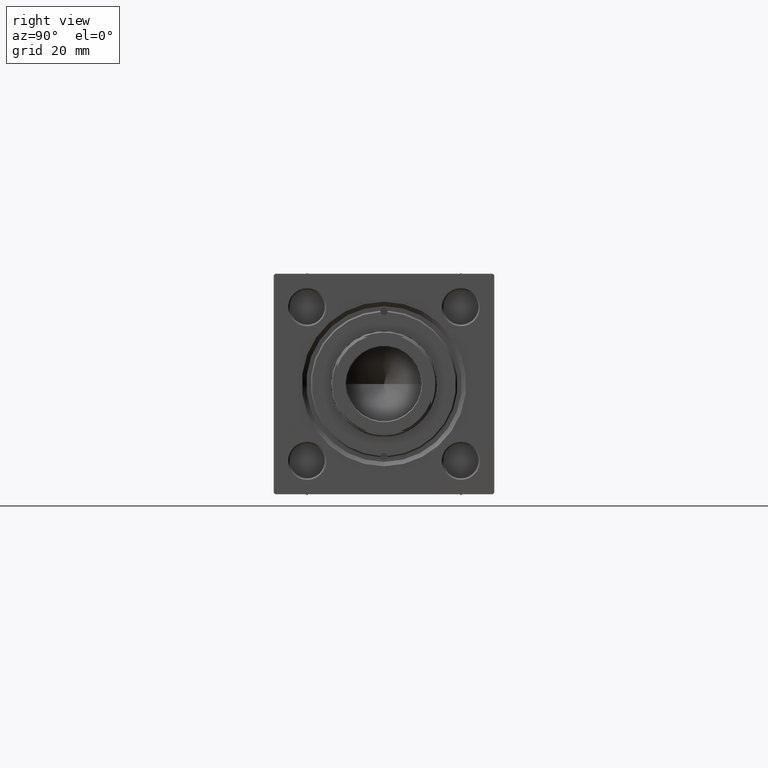
[diagram: clean part render]
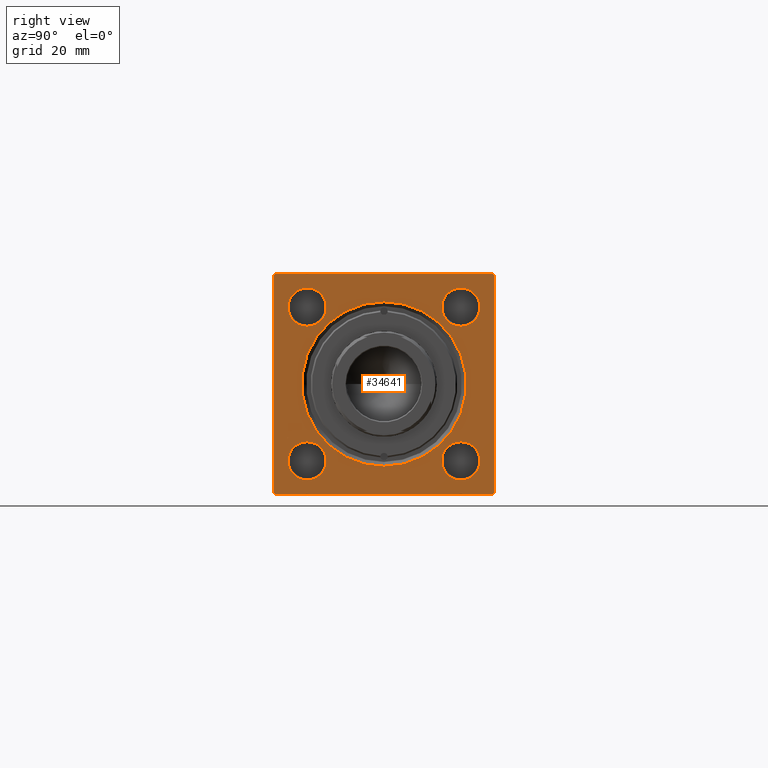
[diagram: same view with one face highlighted and labeled with its STEP entity id]
A machine part, right view. The second image highlights one B-rep face of the part: STEP entity #34641.
In plain terms, the highlighted planar face has unit normal (-1, 0, 0).
Its self-contained STEP definition (entity closure, byte-faithful):
#205 = CARTESIAN_POINT ( 'NONE',  ( 184.0000000000000000, 37.50000000000000000, 37.49999999999999289 ) ) ;
#549 = ORIENTED_EDGE ( 'NONE', *, *, #22399, .T. ) ;
#653 = LINE ( 'NONE', #27917, #35247 ) ;
#822 = CARTESIAN_POINT ( 'NONE',  ( 184.0000000000000000, -26.14999999999999147, 19.64999999999999503 ) ) ;
#872 = EDGE_LOOP ( 'NONE', ( #46929, #549 ) ) ;
#898 = CARTESIAN_POINT ( 'NONE',  ( 184.0000000000000000, 26.14999999999999858, 26.15000000000000213 ) ) ;
#1072 = AXIS2_PLACEMENT_3D ( 'NONE', #898, #16448, #31977 ) ;
#1260 = LINE ( 'NONE', #47909, #1794 ) ;
#1323 = ORIENTED_EDGE ( 'NONE', *, *, #23659, .F. ) ;
#1530 = FACE_OUTER_BOUND ( 'NONE', #28870, .T. ) ;
#1774 = DIRECTION ( 'NONE',  ( -1.000000000000000000, -0.000000000000000000, 0.000000000000000000 ) ) ;
#1794 = VECTOR ( 'NONE', #44081, 1000.000000000000114 ) ;
#2504 = DIRECTION ( 'NONE',  ( -1.000000000000000000, -0.000000000000000000, 0.000000000000000000 ) ) ;
#2620 = EDGE_LOOP ( 'NONE', ( #34027, #14539 ) ) ;
#2982 = CARTESIAN_POINT ( 'NONE',  ( 184.0000000000000000, -26.14999999999999147, 26.14999999999999503 ) ) ;
#3184 = CARTESIAN_POINT ( 'NONE',  ( 184.0000000000000000, -26.14999999999999147, 32.64999999999999858 ) ) ;
#3246 = DIRECTION ( 'NONE',  ( -1.000000000000000000, -0.000000000000000000, 0.000000000000000000 ) ) ;
#3371 = ORIENTED_EDGE ( 'NONE', *, *, #34936, .T. ) ;
#3374 = ORIENTED_EDGE ( 'NONE', *, *, #10351, .T. ) ;
#3448 = CARTESIAN_POINT ( 'NONE',  ( 184.0000000000000000, 26.14999999999999858, -26.15000000000000213 ) ) ;
#3548 = DIRECTION ( 'NONE',  ( -1.000000000000000000, -0.000000000000000000, 0.000000000000000000 ) ) ;
#3720 = EDGE_CURVE ( 'NONE', #15857, #50016, #32888, .T. ) ;
#3830 = VERTEX_POINT ( 'NONE', #22410 ) ;
#4009 = ORIENTED_EDGE ( 'NONE', *, *, #29931, .T. ) ;
#4029 = AXIS2_PLACEMENT_3D ( 'NONE', #21837, #37135, #10650 ) ;
#4243 = CARTESIAN_POINT ( 'NONE',  ( 184.0000000000000000, 37.50000000000000000, -36.99999999999999289 ) ) ;
#4543 = CARTESIAN_POINT ( 'NONE',  ( 184.0000000000000000, -37.50000000000000000, 36.99999999999997868 ) ) ;
#5052 = DIRECTION ( 'NONE',  ( -1.000000000000000000, -0.000000000000000000, 0.000000000000000000 ) ) ;
#6065 = CARTESIAN_POINT ( 'NONE',  ( 184.0000000000000000, 37.00000000000000000, 37.49999999999999289 ) ) ;
#6100 = VERTEX_POINT ( 'NONE', #18092 ) ;
#6550 = AXIS2_PLACEMENT_3D ( 'NONE', #31326, #3548, #7919 ) ;
#7229 = VERTEX_POINT ( 'NONE', #4543 ) ;
#7919 = DIRECTION ( 'NONE',  ( 0.000000000000000000, 0.000000000000000000, 1.000000000000000000 ) ) ;
#8600 = EDGE_LOOP ( 'NONE', ( #50179, #36693 ) ) ;
#9119 = CIRCLE ( 'NONE', #37574, 6.500000000000002665 ) ;
#9185 = FACE_BOUND ( 'NONE', #8600, .T. ) ;
#9207 = DIRECTION ( 'NONE',  ( -1.000000000000000000, -0.000000000000000000, 0.000000000000000000 ) ) ;
#9913 = DIRECTION ( 'NONE',  ( 0.000000000000000000, 0.000000000000000000, 1.000000000000000000 ) ) ;
#10351 = EDGE_CURVE ( 'NONE', #6100, #47912, #40654, .T. ) ;
#10402 = EDGE_CURVE ( 'NONE', #33704, #34515, #37356, .T. ) ;
#10650 = DIRECTION ( 'NONE',  ( 0.000000000000000000, 0.000000000000000000, 1.000000000000000000 ) ) ;
#10651 = VERTEX_POINT ( 'NONE', #3184 ) ;
#10748 = VECTOR ( 'NONE', #39124, 999.9999999999998863 ) ;
#11778 = ORIENTED_EDGE ( 'NONE', *, *, #34233, .T. ) ;
#12322 = DIRECTION ( 'NONE',  ( -0.000000000000000000, -0.7071067811865474617, -0.7071067811865474617 ) ) ;
#12704 = EDGE_CURVE ( 'NONE', #34515, #33704, #30938, .T. ) ;
#13355 = AXIS2_PLACEMENT_3D ( 'NONE', #36664, #1774, #18302 ) ;
#13544 = ORIENTED_EDGE ( 'NONE', *, *, #12704, .T. ) ;
#14539 = ORIENTED_EDGE ( 'NONE', *, *, #16992, .T. ) ;
#15755 = DIRECTION ( 'NONE',  ( 0.000000000000000000, -1.000000000000000000, -1.850371707708594316E-16 ) ) ;
#15857 = VERTEX_POINT ( 'NONE', #38301 ) ;
#16421 = VERTEX_POINT ( 'NONE', #822 ) ;
#16448 = DIRECTION ( 'NONE',  ( -1.000000000000000000, -0.000000000000000000, 0.000000000000000000 ) ) ;
#16706 = AXIS2_PLACEMENT_3D ( 'NONE', #48694, #9207, #24725 ) ;
#16895 = EDGE_CURVE ( 'NONE', #17091, #31655, #1260, .T. ) ;
#16992 = EDGE_CURVE ( 'NONE', #31879, #30826, #9119, .T. ) ;
#17091 = VERTEX_POINT ( 'NONE', #39863 ) ;
#17760 = CIRCLE ( 'NONE', #49515, 6.500000000000002665 ) ;
#17785 = DIRECTION ( 'NONE',  ( -1.000000000000000000, -0.000000000000000000, 0.000000000000000000 ) ) ;
#18092 = CARTESIAN_POINT ( 'NONE',  ( 184.0000000000000000, 0.000000000000000000, -27.99999999999999645 ) ) ;
#18207 = VECTOR ( 'NONE', #48372, 1000.000000000000114 ) ;
#18271 = DIRECTION ( 'NONE',  ( 0.000000000000000000, 0.000000000000000000, 1.000000000000000000 ) ) ;
#18302 = DIRECTION ( 'NONE',  ( 0.000000000000000000, 0.000000000000000000, 1.000000000000000000 ) ) ;
#18856 = ORIENTED_EDGE ( 'NONE', *, *, #20803, .T. ) ;
#19684 = CARTESIAN_POINT ( 'NONE',  ( 184.0000000000000000, -37.50000000000000000, 36.99999999999997868 ) ) ;
#19844 = EDGE_CURVE ( 'NONE', #47900, #24675, #45829, .T. ) ;
#19980 = AXIS2_PLACEMENT_3D ( 'NONE', #2982, #38136, #22839 ) ;
#20781 = CIRCLE ( 'NONE', #19980, 6.500000000000002665 ) ;
#20803 = EDGE_CURVE ( 'NONE', #49362, #50016, #34289, .T. ) ;
#20867 = FACE_BOUND ( 'NONE', #2620, .T. ) ;
#21110 = PLANE ( 'NONE',  #13355 ) ;
#21677 = CARTESIAN_POINT ( 'NONE',  ( 184.0000000000000000, 26.14999999999999858, -32.65000000000001279 ) ) ;
#21837 = CARTESIAN_POINT ( 'NONE',  ( 184.0000000000000000, 0.000000000000000000, 0.000000000000000000 ) ) ;
#21942 = CARTESIAN_POINT ( 'NONE',  ( 184.0000000000000000, 26.14999999999999858, -19.64999999999999858 ) ) ;
#22087 = CARTESIAN_POINT ( 'NONE',  ( 184.0000000000000000, -26.15000000000000213, -26.15000000000000213 ) ) ;
#22399 = EDGE_CURVE ( 'NONE', #10651, #16421, #40928, .T. ) ;
#22410 = CARTESIAN_POINT ( 'NONE',  ( 184.0000000000000000, 37.00000000000000000, 37.49999999999999289 ) ) ;
#22686 = EDGE_CURVE ( 'NONE', #3830, #26886, #38927, .T. ) ;
#22839 = DIRECTION ( 'NONE',  ( 0.000000000000000000, 0.000000000000000000, 1.000000000000000000 ) ) ;
#22942 = CARTESIAN_POINT ( 'NONE',  ( 184.0000000000000000, -26.15000000000000213, -32.65000000000001279 ) ) ;
#23659 = EDGE_CURVE ( 'NONE', #49362, #31655, #653, .T. ) ;
#23696 = EDGE_CURVE ( 'NONE', #24675, #47900, #46678, .T. ) ;
#24637 = DIRECTION ( 'NONE',  ( 0.000000000000000000, 0.000000000000000000, 1.000000000000000000 ) ) ;
#24675 = VERTEX_POINT ( 'NONE', #31129 ) ;
#24706 = FACE_BOUND ( 'NONE', #872, .T. ) ;
#24725 = DIRECTION ( 'NONE',  ( 0.000000000000000000, 0.000000000000000000, 1.000000000000000000 ) ) ;
#25187 = CARTESIAN_POINT ( 'NONE',  ( 184.0000000000000000, -26.14999999999999147, 26.14999999999999503 ) ) ;
#25400 = LINE ( 'NONE', #6065, #18207 ) ;
#26515 = CARTESIAN_POINT ( 'NONE',  ( 184.0000000000000000, -26.15000000000000213, -19.64999999999999858 ) ) ;
#26886 = VERTEX_POINT ( 'NONE', #37955 ) ;
#27134 = VECTOR ( 'NONE', #12322, 1000.000000000000114 ) ;
#27917 = CARTESIAN_POINT ( 'NONE',  ( 184.0000000000000000, 37.50000000000000000, -37.50000000000000000 ) ) ;
#28373 = EDGE_CURVE ( 'NONE', #47912, #6100, #32952, .T. ) ;
#28692 = AXIS2_PLACEMENT_3D ( 'NONE', #25187, #17785, #40992 ) ;
#28870 = EDGE_LOOP ( 'NONE', ( #4009, #46163, #1323, #18856, #39364, #3371, #44762, #11778 ) ) ;
#29931 = EDGE_CURVE ( 'NONE', #7229, #17091, #47242, .T. ) ;
#30826 = VERTEX_POINT ( 'NONE', #21677 ) ;
#30938 = CIRCLE ( 'NONE', #6550, 6.500000000000002665 ) ;
#31129 = CARTESIAN_POINT ( 'NONE',  ( 184.0000000000000000, 26.14999999999999858, 19.64999999999999503 ) ) ;
#31326 = CARTESIAN_POINT ( 'NONE',  ( 184.0000000000000000, -26.15000000000000213, -26.15000000000000213 ) ) ;
#31413 = DIRECTION ( 'NONE',  ( 0.000000000000000000, -9.251858538542972814E-17, -1.000000000000000000 ) ) ;
#31491 = DIRECTION ( 'NONE',  ( 0.000000000000000000, -1.000000000000000000, 0.000000000000000000 ) ) ;
#31655 = VERTEX_POINT ( 'NONE', #38550 ) ;
#31879 = VERTEX_POINT ( 'NONE', #21942 ) ;
#31977 = DIRECTION ( 'NONE',  ( 0.000000000000000000, 0.000000000000000000, 1.000000000000000000 ) ) ;
#32888 = LINE ( 'NONE', #33636, #35660 ) ;
#32952 = CIRCLE ( 'NONE', #16706, 27.99999999999999645 ) ;
#33636 = CARTESIAN_POINT ( 'NONE',  ( 184.0000000000000000, 37.50000000000000000, 37.49999999999999289 ) ) ;
#33704 = VERTEX_POINT ( 'NONE', #26515 ) ;
#34027 = ORIENTED_EDGE ( 'NONE', *, *, #49060, .T. ) ;
#34199 = ORIENTED_EDGE ( 'NONE', *, *, #28373, .T. ) ;
#34233 = EDGE_CURVE ( 'NONE', #26886, #7229, #38543, .T. ) ;
#34289 = LINE ( 'NONE', #4243, #10748 ) ;
#34515 = VERTEX_POINT ( 'NONE', #22942 ) ;
#34641 = ADVANCED_FACE ( 'NONE', ( #9185, #24706, #40252, #20867, #36420, #1530 ), #21110, .F. ) ;
#34936 = EDGE_CURVE ( 'NONE', #15857, #3830, #25400, .T. ) ;
#35247 = VECTOR ( 'NONE', #31491, 1000.000000000000000 ) ;
#35496 = CARTESIAN_POINT ( 'NONE',  ( 184.0000000000000000, 26.14999999999999858, 32.65000000000001279 ) ) ;
#35660 = VECTOR ( 'NONE', #41549, 1000.000000000000000 ) ;
#35718 = EDGE_LOOP ( 'NONE', ( #3374, #34199 ) ) ;
#36348 = CARTESIAN_POINT ( 'NONE',  ( 184.0000000000000000, 26.14999999999999858, 26.15000000000000213 ) ) ;
#36420 = FACE_BOUND ( 'NONE', #35718, .T. ) ;
#36664 = CARTESIAN_POINT ( 'NONE',  ( 184.0000000000000000, 0.000000000000000000, 0.000000000000000000 ) ) ;
#36693 = ORIENTED_EDGE ( 'NONE', *, *, #19844, .T. ) ;
#36732 = AXIS2_PLACEMENT_3D ( 'NONE', #36348, #5052, #24637 ) ;
#37135 = DIRECTION ( 'NONE',  ( -1.000000000000000000, -0.000000000000000000, 0.000000000000000000 ) ) ;
#37356 = CIRCLE ( 'NONE', #45544, 6.500000000000002665 ) ;
#37559 = DIRECTION ( 'NONE',  ( 0.000000000000000000, 0.000000000000000000, 1.000000000000000000 ) ) ;
#37574 = AXIS2_PLACEMENT_3D ( 'NONE', #3448, #2504, #9913 ) ;
#37955 = CARTESIAN_POINT ( 'NONE',  ( 184.0000000000000000, -37.00000000000000000, 37.49999999999997868 ) ) ;
#38136 = DIRECTION ( 'NONE',  ( -1.000000000000000000, -0.000000000000000000, 0.000000000000000000 ) ) ;
#38301 = CARTESIAN_POINT ( 'NONE',  ( 184.0000000000000000, 37.50000000000000000, 36.99999999999999289 ) ) ;
#38543 = LINE ( 'NONE', #19684, #27134 ) ;
#38550 = CARTESIAN_POINT ( 'NONE',  ( 184.0000000000000000, -36.99999999999998579, -37.50000000000000000 ) ) ;
#38927 = LINE ( 'NONE', #205, #40096 ) ;
#39124 = DIRECTION ( 'NONE',  ( -0.000000000000000000, 0.7071067811865425767, 0.7071067811865525687 ) ) ;
#39300 = CARTESIAN_POINT ( 'NONE',  ( 184.0000000000000000, -37.50000000000000000, 37.49999999999997868 ) ) ;
#39323 = CARTESIAN_POINT ( 'NONE',  ( 184.0000000000000000, 3.429011037612588881E-15, 27.99999999999999645 ) ) ;
#39364 = ORIENTED_EDGE ( 'NONE', *, *, #3720, .F. ) ;
#39687 = CARTESIAN_POINT ( 'NONE',  ( 184.0000000000000000, 37.50000000000000000, -36.99999999999999289 ) ) ;
#39787 = EDGE_CURVE ( 'NONE', #16421, #10651, #20781, .T. ) ;
#39863 = CARTESIAN_POINT ( 'NONE',  ( 184.0000000000000000, -37.50000000000000711, -36.99999999999997868 ) ) ;
#40096 = VECTOR ( 'NONE', #15755, 1000.000000000000000 ) ;
#40252 = FACE_BOUND ( 'NONE', #45128, .T. ) ;
#40274 = CARTESIAN_POINT ( 'NONE',  ( 184.0000000000000000, 37.00000000000000000, -37.50000000000000000 ) ) ;
#40654 = CIRCLE ( 'NONE', #4029, 27.99999999999999645 ) ;
#40928 = CIRCLE ( 'NONE', #28692, 6.500000000000002665 ) ;
#40992 = DIRECTION ( 'NONE',  ( 0.000000000000000000, 0.000000000000000000, 1.000000000000000000 ) ) ;
#41549 = DIRECTION ( 'NONE',  ( 0.000000000000000000, 0.000000000000000000, -1.000000000000000000 ) ) ;
#44081 = DIRECTION ( 'NONE',  ( 0.000000000000000000, 0.7071067811865474617, -0.7071067811865474617 ) ) ;
#44745 = CARTESIAN_POINT ( 'NONE',  ( 184.0000000000000000, 26.14999999999999858, -26.15000000000000213 ) ) ;
#44762 = ORIENTED_EDGE ( 'NONE', *, *, #22686, .T. ) ;
#45128 = EDGE_LOOP ( 'NONE', ( #13544, #47720 ) ) ;
#45241 = DIRECTION ( 'NONE',  ( -1.000000000000000000, -0.000000000000000000, 0.000000000000000000 ) ) ;
#45544 = AXIS2_PLACEMENT_3D ( 'NONE', #22087, #3246, #18271 ) ;
#45829 = CIRCLE ( 'NONE', #36732, 6.500000000000008882 ) ;
#46163 = ORIENTED_EDGE ( 'NONE', *, *, #16895, .T. ) ;
#46678 = CIRCLE ( 'NONE', #1072, 6.500000000000008882 ) ;
#46856 = VECTOR ( 'NONE', #31413, 1000.000000000000000 ) ;
#46929 = ORIENTED_EDGE ( 'NONE', *, *, #39787, .T. ) ;
#47242 = LINE ( 'NONE', #39300, #46856 ) ;
#47720 = ORIENTED_EDGE ( 'NONE', *, *, #10402, .T. ) ;
#47900 = VERTEX_POINT ( 'NONE', #35496 ) ;
#47909 = CARTESIAN_POINT ( 'NONE',  ( 184.0000000000000000, -36.99999999999998579, -37.50000000000000000 ) ) ;
#47912 = VERTEX_POINT ( 'NONE', #39323 ) ;
#48372 = DIRECTION ( 'NONE',  ( 0.000000000000000000, -0.7071067811865474617, 0.7071067811865474617 ) ) ;
#48694 = CARTESIAN_POINT ( 'NONE',  ( 184.0000000000000000, 0.000000000000000000, 0.000000000000000000 ) ) ;
#49060 = EDGE_CURVE ( 'NONE', #30826, #31879, #17760, .T. ) ;
#49362 = VERTEX_POINT ( 'NONE', #40274 ) ;
#49515 = AXIS2_PLACEMENT_3D ( 'NONE', #44745, #45241, #37559 ) ;
#50016 = VERTEX_POINT ( 'NONE', #39687 ) ;
#50179 = ORIENTED_EDGE ( 'NONE', *, *, #23696, .T. ) ;